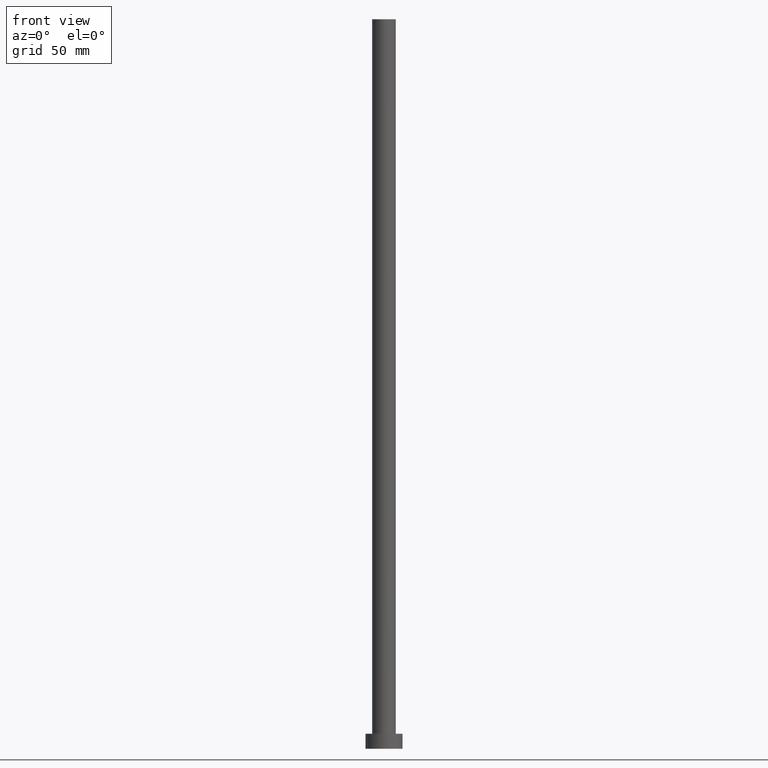
[diagram: clean part render]
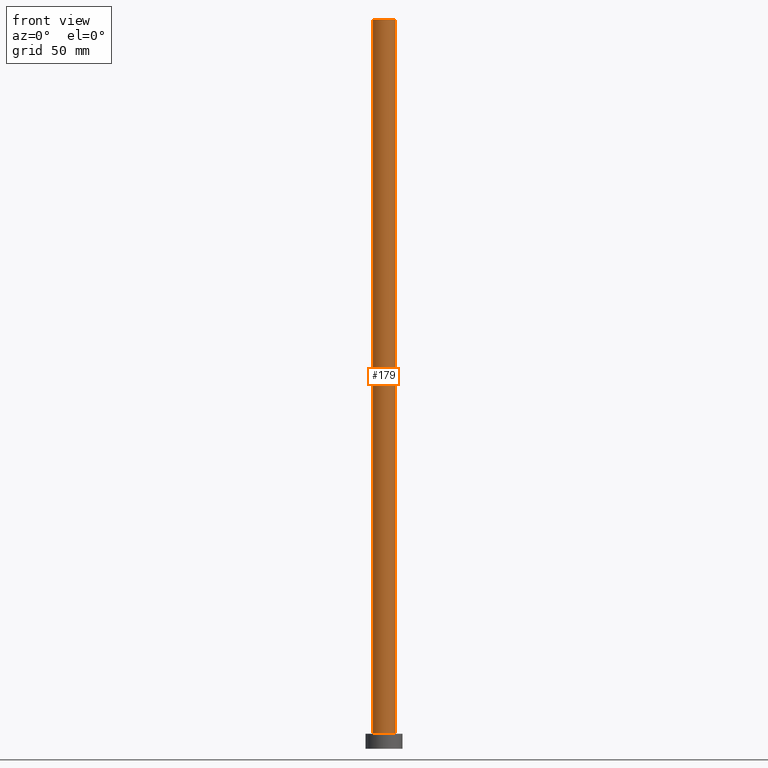
[diagram: same view with one face highlighted and labeled with its STEP entity id]
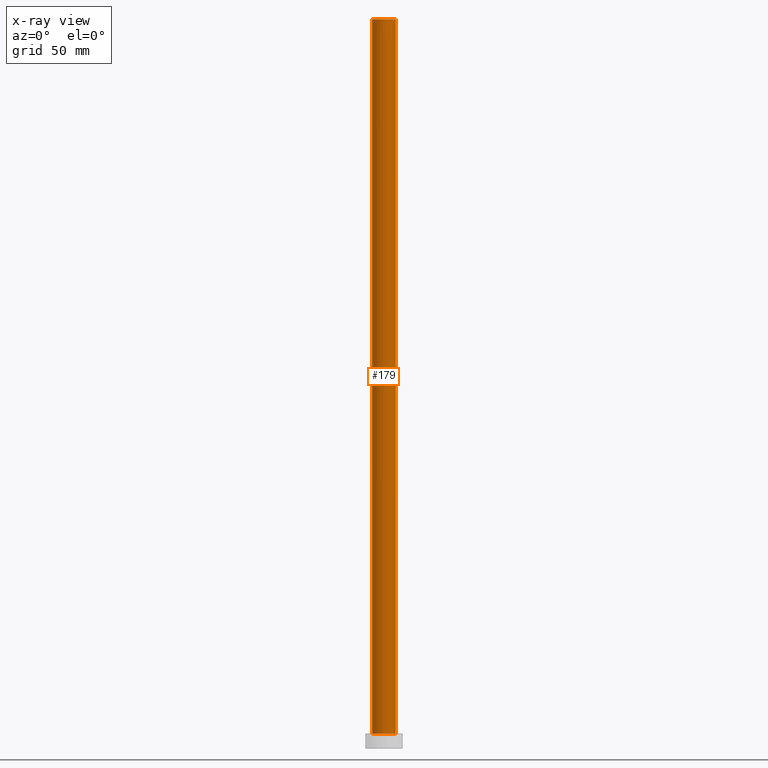
[diagram: x-ray of the same camera — body ghosted, the highlighted face saturated]
A machine part, front view. The second image highlights one B-rep face of the part: STEP entity #179.
The next image is the same camera in x-ray: the body ghosted, the highlighted face saturated — about 0% of this face is hidden behind the body in this view.
In plain terms, the highlighted cylindrical surface (edge-blend (fillet) strip) has radius 5.1 mm, axis along (-0, -0, -1).
Its self-contained STEP definition (entity closure, byte-faithful):
#9 = CARTESIAN_POINT ( 'NONE',  ( -5.100000000000001421, 0.000000000000000000, 6.500000000000000000 ) ) ;
#20 = DIRECTION ( 'NONE',  ( -0.000000000000000000, -0.000000000000000000, -1.000000000000000000 ) ) ;
#38 = ORIENTED_EDGE ( 'NONE', *, *, #168, .F. ) ;
#41 = ORIENTED_EDGE ( 'NONE', *, *, #226, .T. ) ;
#43 = DIRECTION ( 'NONE',  ( 0.000000000000000000, 0.000000000000000000, 1.000000000000000000 ) ) ;
#48 = CARTESIAN_POINT ( 'NONE',  ( 0.000000000000000000, 0.000000000000000000, 315.0000000000000000 ) ) ;
#58 = EDGE_CURVE ( 'NONE', #114, #113, #62, .T. ) ;
#62 = LINE ( 'NONE', #130, #208 ) ;
#64 = CARTESIAN_POINT ( 'NONE',  ( -5.100000000000001421, 0.000000000000000000, 315.0000000000000000 ) ) ;
#66 = CYLINDRICAL_SURFACE ( 'NONE', #161, 5.100000000000001421 ) ;
#68 = DIRECTION ( 'NONE',  ( 1.000000000000000000, 0.000000000000000000, 0.000000000000000000 ) ) ;
#75 = AXIS2_PLACEMENT_3D ( 'NONE', #157, #43, #118 ) ;
#82 = CARTESIAN_POINT ( 'NONE',  ( 0.000000000000000000, 0.000000000000000000, 315.0000000000000000 ) ) ;
#85 = CARTESIAN_POINT ( 'NONE',  ( -5.100000000000001421, 0.000000000000000000, 315.0000000000000000 ) ) ;
#103 = DIRECTION ( 'NONE',  ( -1.000000000000000000, 0.000000000000000000, 0.000000000000000000 ) ) ;
#113 = VERTEX_POINT ( 'NONE', #158 ) ;
#114 = VERTEX_POINT ( 'NONE', #218 ) ;
#118 = DIRECTION ( 'NONE',  ( 1.000000000000000000, 0.000000000000000000, 0.000000000000000000 ) ) ;
#123 = LINE ( 'NONE', #64, #145 ) ;
#130 = CARTESIAN_POINT ( 'NONE',  ( 5.100000000000001421, 6.245698675651501825E-16, 315.0000000000000000 ) ) ;
#135 = VERTEX_POINT ( 'NONE', #85 ) ;
#140 = DIRECTION ( 'NONE',  ( 0.000000000000000000, 0.000000000000000000, 1.000000000000000000 ) ) ;
#143 = CIRCLE ( 'NONE', #187, 5.100000000000001421 ) ;
#145 = VECTOR ( 'NONE', #20, 1000.000000000000000 ) ;
#157 = CARTESIAN_POINT ( 'NONE',  ( 0.000000000000000000, 0.000000000000000000, 6.500000000000000000 ) ) ;
#158 = CARTESIAN_POINT ( 'NONE',  ( 5.100000000000001421, 6.245698675651501825E-16, 6.500000000000000000 ) ) ;
#161 = AXIS2_PLACEMENT_3D ( 'NONE', #48, #219, #103 ) ;
#166 = VERTEX_POINT ( 'NONE', #9 ) ;
#168 = EDGE_CURVE ( 'NONE', #135, #114, #143, .T. ) ;
#169 = EDGE_LOOP ( 'NONE', ( #230, #38, #213, #41 ) ) ;
#179 = ADVANCED_FACE ( 'NONE', ( #220 ), #66, .T. ) ;
#187 = AXIS2_PLACEMENT_3D ( 'NONE', #82, #140, #68 ) ;
#204 = CIRCLE ( 'NONE', #75, 5.100000000000001421 ) ;
#206 = EDGE_CURVE ( 'NONE', #135, #166, #123, .T. ) ;
#208 = VECTOR ( 'NONE', #253, 1000.000000000000000 ) ;
#213 = ORIENTED_EDGE ( 'NONE', *, *, #206, .T. ) ;
#218 = CARTESIAN_POINT ( 'NONE',  ( 5.100000000000001421, 6.245698675651501825E-16, 315.0000000000000000 ) ) ;
#219 = DIRECTION ( 'NONE',  ( -0.000000000000000000, -0.000000000000000000, -1.000000000000000000 ) ) ;
#220 = FACE_OUTER_BOUND ( 'NONE', #169, .T. ) ;
#226 = EDGE_CURVE ( 'NONE', #166, #113, #204, .T. ) ;
#230 = ORIENTED_EDGE ( 'NONE', *, *, #58, .F. ) ;
#253 = DIRECTION ( 'NONE',  ( -0.000000000000000000, -0.000000000000000000, -1.000000000000000000 ) ) ;